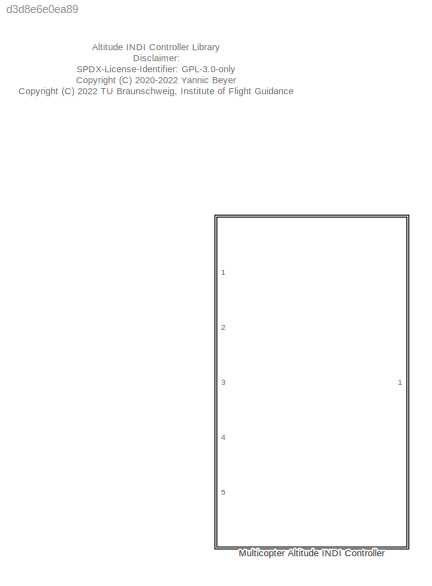
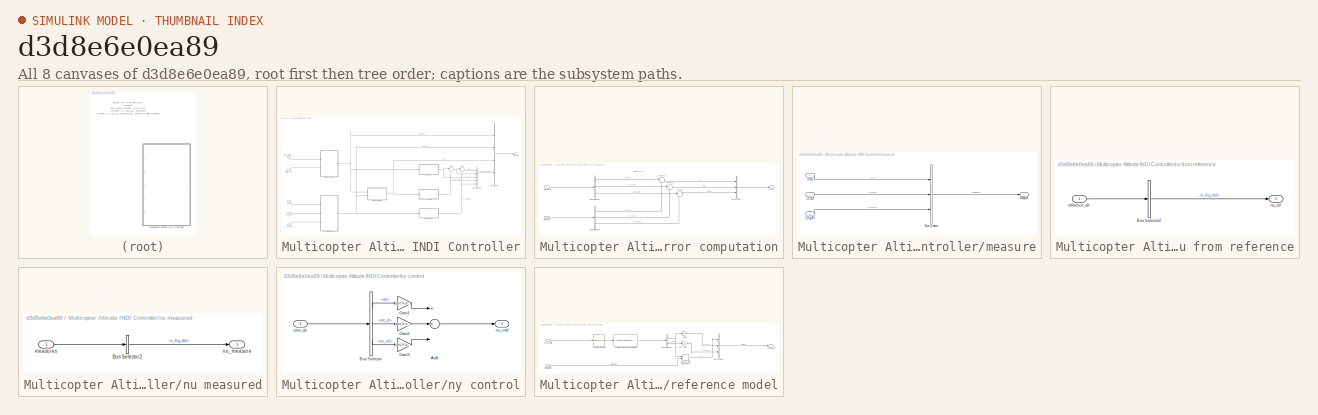
[diagram: thumbnail index - all 8 canvases of the model, root first then tree order]
MODEL slx_d3d8e6e0ea89
KIND library
CONFIG AbsTol = auto
CONFIG EnableMultiTasking = off
CONFIG FixedStep = auto
CONFIG MaxStep = auto
CONFIG MinStep = auto
CONFIG RelTol = 1e-3
CONFIG SampleTimeConstraint = Unconstrained
CONFIG Solver = VariableStepAuto
CONFIG SolverName = VariableStepAuto
CONFIG StartTime = 0.0
CONFIG StopTime = 10.0
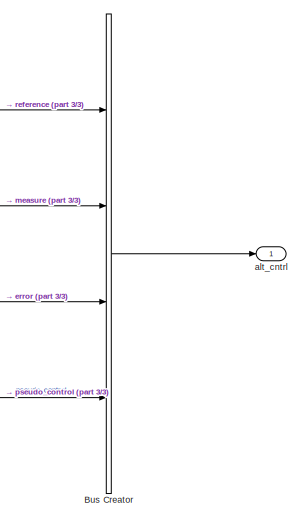
[diagram: Multicopter Altitude INDI Controller - part 1/3, top right region]
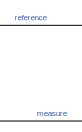
[diagram: Multicopter Altitude INDI Controller - part 2/3, top center region]
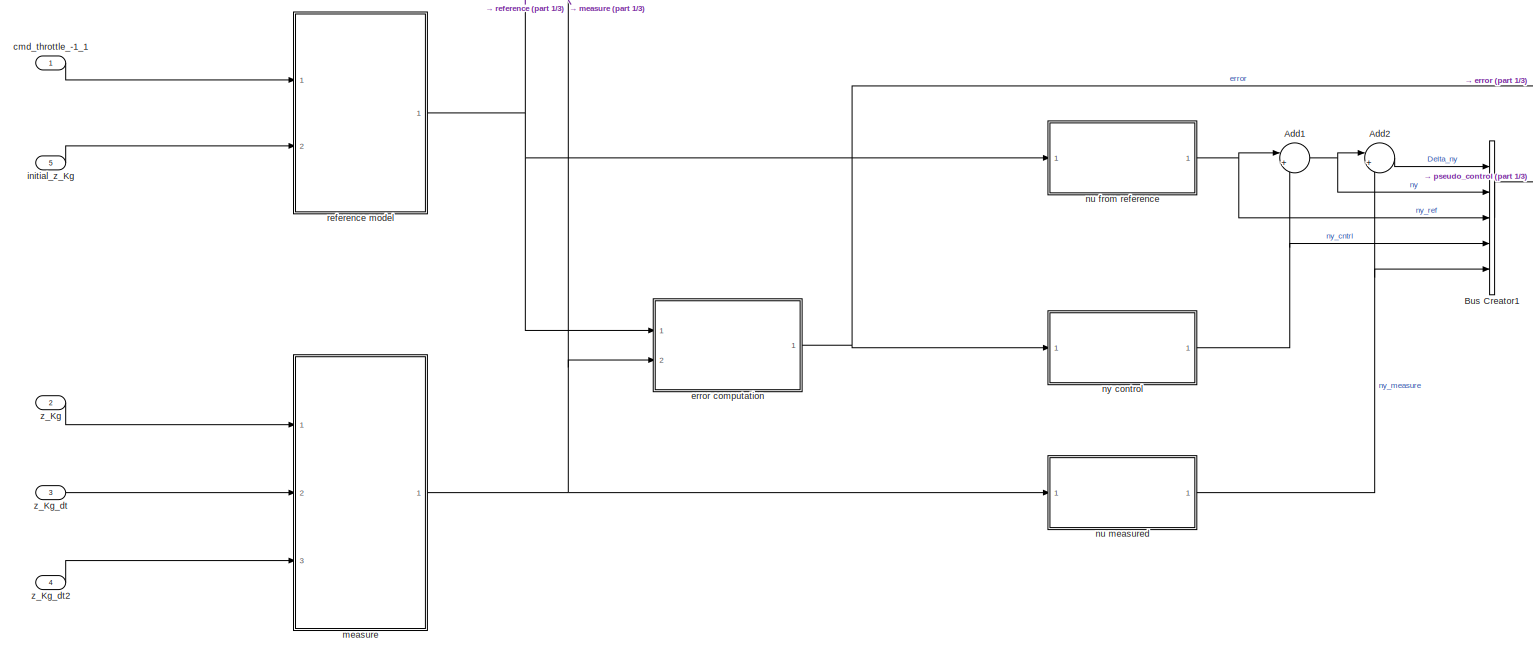
[diagram: Multicopter Altitude INDI Controller - part 3/3, full width, middle band]
BLOCK [SubSystem] Multicopter Altitude INDI Controller
  Ports = [5, 1]
  RequestExecContextInheritance = off
BLOCK [Sum] Multicopter Altitude INDI Controller/Add1
  IconShape = round
  InputSameDT = off
  Inputs = |++
  OutDataTypeStr = Inherit: Inherit via internal rule
  Ports = [2, 1]
  SaturateOnIntegerOverflow = off
BLOCK [Sum] Multicopter Altitude INDI Controller/Add2
  IconShape = round
  InputSameDT = off
  Inputs = |+-
  OutDataTypeStr = Inherit: Inherit via internal rule
  Ports = [2, 1]
  SaturateOnIntegerOverflow = off
BLOCK [BusCreator] Multicopter Altitude INDI Controller/Bus Creator
  DisplayOption = bar
  InheritFromInputs = on
  Inputs = 4
  Ports = [4, 1]
BLOCK [BusCreator] Multicopter Altitude INDI Controller/Bus Creator1
  DisplayOption = bar
  InheritFromInputs = on
  Inputs = 5
  Ports = [5, 1]
BLOCK [Outport] Multicopter Altitude INDI Controller/alt_cntrl
  IconDisplay = Port number
BLOCK [Inport] Multicopter Altitude INDI Controller/cmd_throttle_-1_1
  IconDisplay = Port number
BLOCK [SubSystem] Multicopter Altitude INDI Controller/error computation
  Ports = [2, 1]
  RequestExecContextInheritance = off
BLOCK [BusCreator] Multicopter Altitude INDI Controller/error computation/Bus Creator1
  DisplayOption = bar
  InheritFromInputs = on
  Inputs = 3
  Ports = [3, 1]
BLOCK [BusSelector] Multicopter Altitude INDI Controller/error computation/Bus Selector4
  OutputAsBus = off
  OutputSignals = z_Kg,z_Kg_dt,z_Kg_dt2
  Ports = [1, 3]
BLOCK [BusSelector] Multicopter Altitude INDI Controller/error computation/Bus Selector5
  OutputAsBus = off
  OutputSignals = z_Kg,z_Kg_dt,z_Kg_dt2
  Ports = [1, 3]
BLOCK [Outport] Multicopter Altitude INDI Controller/error computation/error
  IconDisplay = Port number
BLOCK [Sum] Multicopter Altitude INDI Controller/error computation/error1 1
  IconShape = round
  InputSameDT = off
  Inputs = |+-
  OutDataTypeStr = Inherit: Inherit via internal rule
  Ports = [2, 1]
  SaturateOnIntegerOverflow = off
BLOCK [Sum] Multicopter Altitude INDI Controller/error computation/error1 2
  IconShape = round
  InputSameDT = off
  Inputs = |+-
  OutDataTypeStr = Inherit: Inherit via internal rule
  Ports = [2, 1]
  SaturateOnIntegerOverflow = off
BLOCK [Sum] Multicopter Altitude INDI Controller/error computation/error1 3
  IconShape = round
  InputSameDT = off
  Inputs = |+-
  OutDataTypeStr = Inherit: Inherit via internal rule
  Ports = [2, 1]
  SaturateOnIntegerOverflow = off
BLOCK [Inport] Multicopter Altitude INDI Controller/error computation/measure
  IconDisplay = Port number
  Port = 2
BLOCK [Inport] Multicopter Altitude INDI Controller/error computation/reference
  IconDisplay = Port number
BLOCK [Inport] Multicopter Altitude INDI Controller/initial_z_Kg
  IconDisplay = Port number
  Port = 5
BLOCK [SubSystem] Multicopter Altitude INDI Controller/measure
  Ports = [3, 1]
  RequestExecContextInheritance = off
BLOCK [BusCreator] Multicopter Altitude INDI Controller/measure/Bus Creator
  DisplayOption = bar
  InheritFromInputs = on
  Inputs = 3
  Ports = [3, 1]
BLOCK [Outport] Multicopter Altitude INDI Controller/measure/measure
  IconDisplay = Port number
BLOCK [Inport] Multicopter Altitude INDI Controller/measure/z_Kg
  IconDisplay = Port number
BLOCK [Inport] Multicopter Altitude INDI Controller/measure/z_Kg_dt
  IconDisplay = Port number
  Port = 2
BLOCK [Inport] Multicopter Altitude INDI Controller/measure/z_Kg_dt2
  IconDisplay = Port number
  Port = 3
BLOCK [SubSystem] Multicopter Altitude INDI Controller/nu from reference
  Ports = [1, 1]
  RequestExecContextInheritance = off
BLOCK [BusSelector] Multicopter Altitude INDI Controller/nu from reference/Bus Selector2
  OutputAsBus = off
  OutputSignals = z_Kg_dt2
  Ports = [1, 1]
BLOCK [Outport] Multicopter Altitude INDI Controller/nu from reference/nu_ref
  IconDisplay = Port number
BLOCK [Inport] Multicopter Altitude INDI Controller/nu from reference/reference_alt
  IconDisplay = Port number
BLOCK [SubSystem] Multicopter Altitude INDI Controller/nu measured
  Ports = [1, 1]
  RequestExecContextInheritance = off
BLOCK [BusSelector] Multicopter Altitude INDI Controller/nu measured/Bus Selector2
  OutputAsBus = off
  OutputSignals = altitude.z_Kg_dt2
  Ports = [1, 1]
BLOCK [Inport] Multicopter Altitude INDI Controller/nu measured/measures
  IconDisplay = Port number
BLOCK [Outport] Multicopter Altitude INDI Controller/nu measured/nu_measure
  IconDisplay = Port number
BLOCK [SubSystem] Multicopter Altitude INDI Controller/ny control
  Ports = [1, 1]
  RequestExecContextInheritance = off
BLOCK [Sum] Multicopter Altitude INDI Controller/ny control/Add
  InputSameDT = off
  Inputs = 3
  OutDataTypeStr = Inherit: Inherit via internal rule
  Ports = [3, 1]
  SaturateOnIntegerOverflow = off
BLOCK [BusSelector] Multicopter Altitude INDI Controller/ny control/Bus Selector
  OutputAsBus = off
  OutputSignals = alt,alt_dt,alt_dt2
  Ports = [1, 3]
BLOCK [Gain] Multicopter Altitude INDI Controller/ny control/Gain1
  Gain = psc.k.pos
  OutDataTypeStr = Inherit: Inherit via internal rule
  ParamDataTypeStr = Inherit: Inherit via internal rule
  SaturateOnIntegerOverflow = off
BLOCK [Gain] Multicopter Altitude INDI Controller/ny control/Gain2
  Gain = psc.k.vel
  OutDataTypeStr = Inherit: Inherit via internal rule
  ParamDataTypeStr = Inherit: Inherit via internal rule
  SaturateOnIntegerOverflow = off
BLOCK [Gain] Multicopter Altitude INDI Controller/ny control/Gain3
  Gain = psc.k.acc
  OutDataTypeStr = Inherit: Inherit via internal rule
  ParamDataTypeStr = Inherit: Inherit via internal rule
  SaturateOnIntegerOverflow = off
BLOCK [Inport] Multicopter Altitude INDI Controller/ny control/error_alt
  IconDisplay = Port number
BLOCK [Outport] Multicopter Altitude INDI Controller/ny control/nu_cntrl
  IconDisplay = Port number
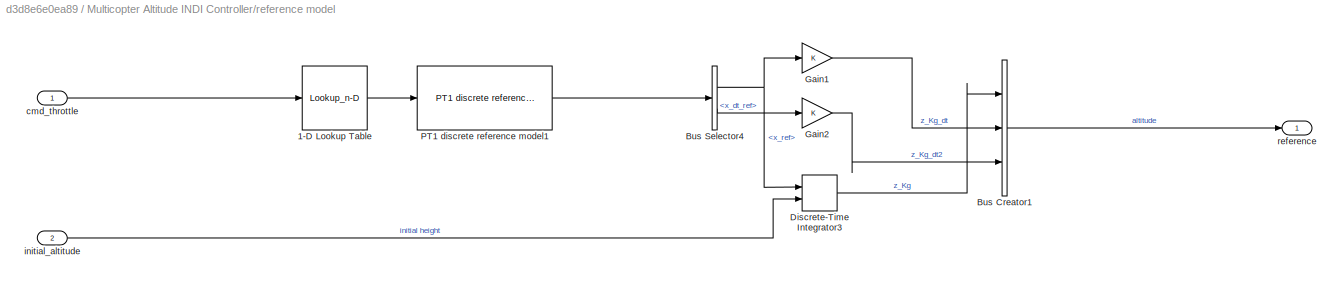
BLOCK [SubSystem] Multicopter Altitude INDI Controller/reference model
  Ports = [2, 1]
  RequestExecContextInheritance = off
BLOCK [Lookup_n-D] Multicopter Altitude INDI Controller/reference model/1-D Lookup Table
  BreakpointsForDimension1 = [-1,0,1]
  InternalRulePriority = Speed
  NumberOfTableDimensions = 1
  Ports = [1, 1]
  RndMeth = Simplest
  Table = [psc.rm.veldmax,0,-psc.rm.velumax]
BLOCK [BusCreator] Multicopter Altitude INDI Controller/reference model/Bus Creator1
  DisplayOption = bar
  InheritFromInputs = on
  Inputs = 3
  Ports = [3, 1]
BLOCK [BusSelector] Multicopter Altitude INDI Controller/reference model/Bus Selector4
  OutputAsBus = off
  OutputSignals = x_ref,x_dt_ref
  Ports = [1, 2]
BLOCK [DiscreteIntegrator] Multicopter Altitude INDI Controller/reference model/Discrete-Time Integrator3
  ICPrevOutput = DiscIntNeverNeededParam
  ICPrevScaledInput = DiscIntNeverNeededParam
  InitialConditionSetting = Auto
  InitialConditionSource = external
  Ports = [2, 1]
  SampleTime = -1
BLOCK [Gain] Multicopter Altitude INDI Controller/reference model/Gain1
  OutDataTypeStr = Inherit: Inherit via internal rule
  ParamDataTypeStr = Inherit: Inherit via internal rule
  SaturateOnIntegerOverflow = off
BLOCK [Gain] Multicopter Altitude INDI Controller/reference model/Gain2
  OutDataTypeStr = Inherit: Inherit via internal rule
  ParamDataTypeStr = Inherit: Inherit via internal rule
  SaturateOnIntegerOverflow = off
BLOCK [Reference] Multicopter Altitude INDI Controller/reference model/PT1 discrete reference model1  REF=ndi_lib/PT1 discrete reference model  (lib defined in slx_72fedfba3911)
  Ports = [1, 1]
  SourceBlock = ndi_lib/PT1 discrete reference model
  SourceProductName = LADAC
BLOCK [Inport] Multicopter Altitude INDI Controller/reference model/cmd_throttle
  IconDisplay = Port number
BLOCK [Inport] Multicopter Altitude INDI Controller/reference model/initial_altitude
  IconDisplay = Port number
  Port = 2
BLOCK [Outport] Multicopter Altitude INDI Controller/reference model/reference
  IconDisplay = Port number
BLOCK [Inport] Multicopter Altitude INDI Controller/z_Kg
  IconDisplay = Port number
  Port = 2
BLOCK [Inport] Multicopter Altitude INDI Controller/z_Kg_dt
  IconDisplay = Port number
  Port = 3
BLOCK [Inport] Multicopter Altitude INDI Controller/z_Kg_dt2
  IconDisplay = Port number
  Port = 4
ANNOTATION (root): Altitude INDI Controller Library Disclaimer: SPDX-License-Identifier: GPL-3.0-only <copyright redacted>
ANNOTATION Multicopter Altitude INDI Controller/error computation: altitude errors
NET Multicopter Altitude INDI Controller/Add1:1 -> Multicopter Altitude INDI Controller/Add2:1, Multicopter Altitude INDI Controller/Bus Creator1:2
LINE Multicopter Altitude INDI Controller/Add2:1 -> Multicopter Altitude INDI Controller/Bus Creator1:1
LINE Multicopter Altitude INDI Controller/Bus Creator1:1 -> Multicopter Altitude INDI Controller/Bus Creator:4
LINE Multicopter Altitude INDI Controller/Bus Creator:1 -> Multicopter Altitude INDI Controller/alt_cntrl:1
LINE Multicopter Altitude INDI Controller/cmd_throttle_-1_1:1 -> Multicopter Altitude INDI Controller/reference model:1
LINE Multicopter Altitude INDI Controller/error computation/Bus Creator1:1 -> Multicopter Altitude INDI Controller/error computation/error:1
LINE Multicopter Altitude INDI Controller/error computation/Bus Selector4:1 -> Multicopter Altitude INDI Controller/error computation/error1 3:1
LINE Multicopter Altitude INDI Controller/error computation/Bus Selector4:2 -> Multicopter Altitude INDI Controller/error computation/error1 1:1
LINE Multicopter Altitude INDI Controller/error computation/Bus Selector4:3 -> Multicopter Altitude INDI Controller/error computation/error1 2:1
LINE Multicopter Altitude INDI Controller/error computation/Bus Selector5:1 -> Multicopter Altitude INDI Controller/error computation/error1 3:2
LINE Multicopter Altitude INDI Controller/error computation/Bus Selector5:2 -> Multicopter Altitude INDI Controller/error computation/error1 1:2
LINE Multicopter Altitude INDI Controller/error computation/Bus Selector5:3 -> Multicopter Altitude INDI Controller/error computation/error1 2:2
LINE Multicopter Altitude INDI Controller/error computation/error1 1:1 -> Multicopter Altitude INDI Controller/error computation/Bus Creator1:2
LINE Multicopter Altitude INDI Controller/error computation/error1 2:1 -> Multicopter Altitude INDI Controller/error computation/Bus Creator1:3
LINE Multicopter Altitude INDI Controller/error computation/error1 3:1 -> Multicopter Altitude INDI Controller/error computation/Bus Creator1:1
LINE Multicopter Altitude INDI Controller/error computation/measure:1 -> Multicopter Altitude INDI Controller/error computation/Bus Selector5:1
LINE Multicopter Altitude INDI Controller/error computation/reference:1 -> Multicopter Altitude INDI Controller/error computation/Bus Selector4:1
NET Multicopter Altitude INDI Controller/error computation:1 -> Multicopter Altitude INDI Controller/Bus Creator:3, Multicopter Altitude INDI Controller/ny control:1
LINE Multicopter Altitude INDI Controller/initial_z_Kg:1 -> Multicopter Altitude INDI Controller/reference model:2
LINE Multicopter Altitude INDI Controller/measure/Bus Creator:1 -> Multicopter Altitude INDI Controller/measure/measure:1
LINE Multicopter Altitude INDI Controller/measure/z_Kg:1 -> Multicopter Altitude INDI Controller/measure/Bus Creator:1
LINE Multicopter Altitude INDI Controller/measure/z_Kg_dt2:1 -> Multicopter Altitude INDI Controller/measure/Bus Creator:3
LINE Multicopter Altitude INDI Controller/measure/z_Kg_dt:1 -> Multicopter Altitude INDI Controller/measure/Bus Creator:2
NET Multicopter Altitude INDI Controller/measure:1 -> Multicopter Altitude INDI Controller/Bus Creator:2, Multicopter Altitude INDI Controller/error computation:2, Multicopter Altitude INDI Controller/nu measured:1
LINE Multicopter Altitude INDI Controller/nu from reference/Bus Selector2:1 -> Multicopter Altitude INDI Controller/nu from reference/nu_ref:1
LINE Multicopter Altitude INDI Controller/nu from reference/reference_alt:1 -> Multicopter Altitude INDI Controller/nu from reference/Bus Selector2:1
NET Multicopter Altitude INDI Controller/nu from reference:1 -> Multicopter Altitude INDI Controller/Add1:1, Multicopter Altitude INDI Controller/Bus Creator1:3
LINE Multicopter Altitude INDI Controller/nu measured/Bus Selector2:1 -> Multicopter Altitude INDI Controller/nu measured/nu_measure:1
LINE Multicopter Altitude INDI Controller/nu measured/measures:1 -> Multicopter Altitude INDI Controller/nu measured/Bus Selector2:1
NET Multicopter Altitude INDI Controller/nu measured:1 -> Multicopter Altitude INDI Controller/Add2:2, Multicopter Altitude INDI Controller/Bus Creator1:5
LINE Multicopter Altitude INDI Controller/ny control/Add:1 -> Multicopter Altitude INDI Controller/ny control/nu_cntrl:1
LINE Multicopter Altitude INDI Controller/ny control/Bus Selector:1 -> Multicopter Altitude INDI Controller/ny control/Gain1:1
LINE Multicopter Altitude INDI Controller/ny control/Bus Selector:2 -> Multicopter Altitude INDI Controller/ny control/Gain2:1
LINE Multicopter Altitude INDI Controller/ny control/Bus Selector:3 -> Multicopter Altitude INDI Controller/ny control/Gain3:1
LINE Multicopter Altitude INDI Controller/ny control/Gain1:1 -> Multicopter Altitude INDI Controller/ny control/Add:1
LINE Multicopter Altitude INDI Controller/ny control/Gain2:1 -> Multicopter Altitude INDI Controller/ny control/Add:2
LINE Multicopter Altitude INDI Controller/ny control/Gain3:1 -> Multicopter Altitude INDI Controller/ny control/Add:3
LINE Multicopter Altitude INDI Controller/ny control/error_alt:1 -> Multicopter Altitude INDI Controller/ny control/Bus Selector:1
NET Multicopter Altitude INDI Controller/ny control:1 -> Multicopter Altitude INDI Controller/Add1:2, Multicopter Altitude INDI Controller/Bus Creator1:4
LINE Multicopter Altitude INDI Controller/reference model/1-D Lookup Table:1 -> Multicopter Altitude INDI Controller/reference model/PT1 discrete reference model1:1
LINE Multicopter Altitude INDI Controller/reference model/Bus Creator1:1 -> Multicopter Altitude INDI Controller/reference model/reference:1
NET Multicopter Altitude INDI Controller/reference model/Bus Selector4:1 -> Multicopter Altitude INDI Controller/reference model/Discrete-Time Integrator3:1, Multicopter Altitude INDI Controller/reference model/Gain1:1
LINE Multicopter Altitude INDI Controller/reference model/Bus Selector4:2 -> Multicopter Altitude INDI Controller/reference model/Gain2:1
LINE Multicopter Altitude INDI Controller/reference model/Discrete-Time Integrator3:1 -> Multicopter Altitude INDI Controller/reference model/Bus Creator1:1
LINE Multicopter Altitude INDI Controller/reference model/Gain1:1 -> Multicopter Altitude INDI Controller/reference model/Bus Creator1:2
LINE Multicopter Altitude INDI Controller/reference model/Gain2:1 -> Multicopter Altitude INDI Controller/reference model/Bus Creator1:3
LINE Multicopter Altitude INDI Controller/reference model/PT1 discrete reference model1:1 -> Multicopter Altitude INDI Controller/reference model/Bus Selector4:1
LINE Multicopter Altitude INDI Controller/reference model/cmd_throttle:1 -> Multicopter Altitude INDI Controller/reference model/1-D Lookup Table:1
LINE Multicopter Altitude INDI Controller/reference model/initial_altitude:1 -> Multicopter Altitude INDI Controller/reference model/Discrete-Time Integrator3:2
NET Multicopter Altitude INDI Controller/reference model:1 -> Multicopter Altitude INDI Controller/Bus Creator:1, Multicopter Altitude INDI Controller/error computation:1, Multicopter Altitude INDI Controller/nu from reference:1
LINE Multicopter Altitude INDI Controller/z_Kg:1 -> Multicopter Altitude INDI Controller/measure:1
LINE Multicopter Altitude INDI Controller/z_Kg_dt2:1 -> Multicopter Altitude INDI Controller/measure:3
LINE Multicopter Altitude INDI Controller/z_Kg_dt:1 -> Multicopter Altitude INDI Controller/measure:2
note: NET lines group one-source signal fan-out (src -> all destinations, sorted); 1:1 wires keep LINE
